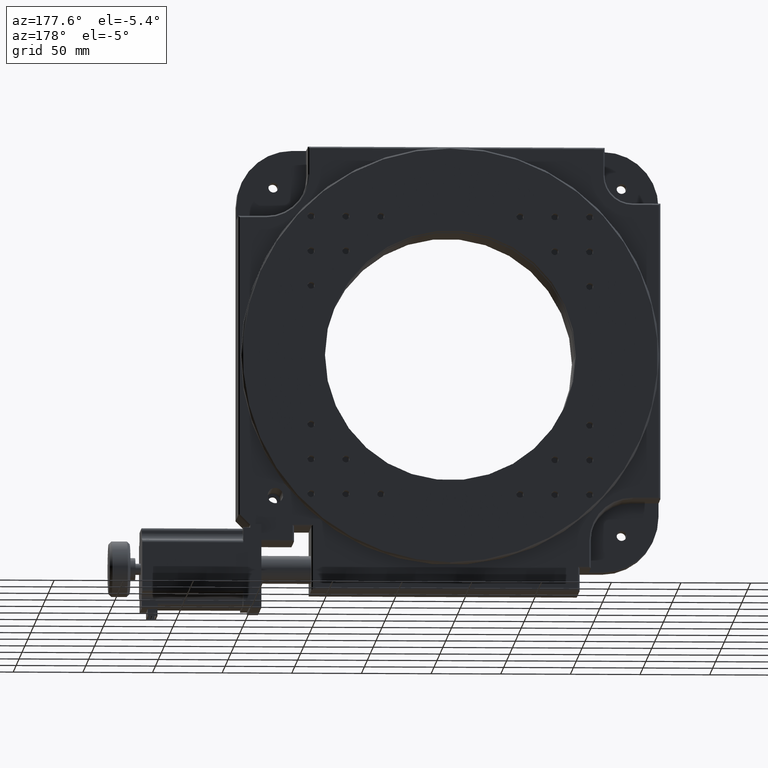
[diagram: clean part render]
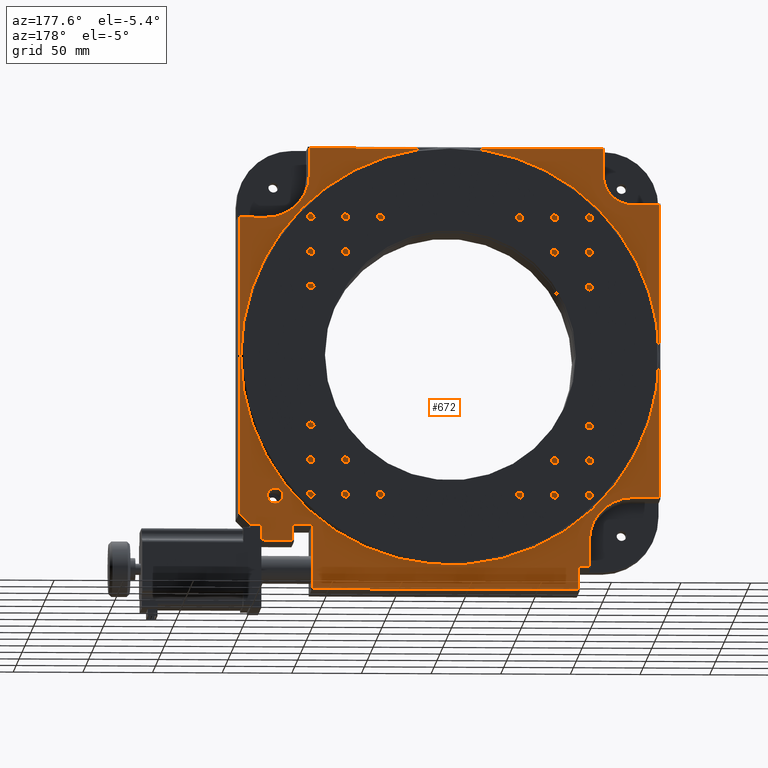
[diagram: same view with one face highlighted and labeled with its STEP entity id]
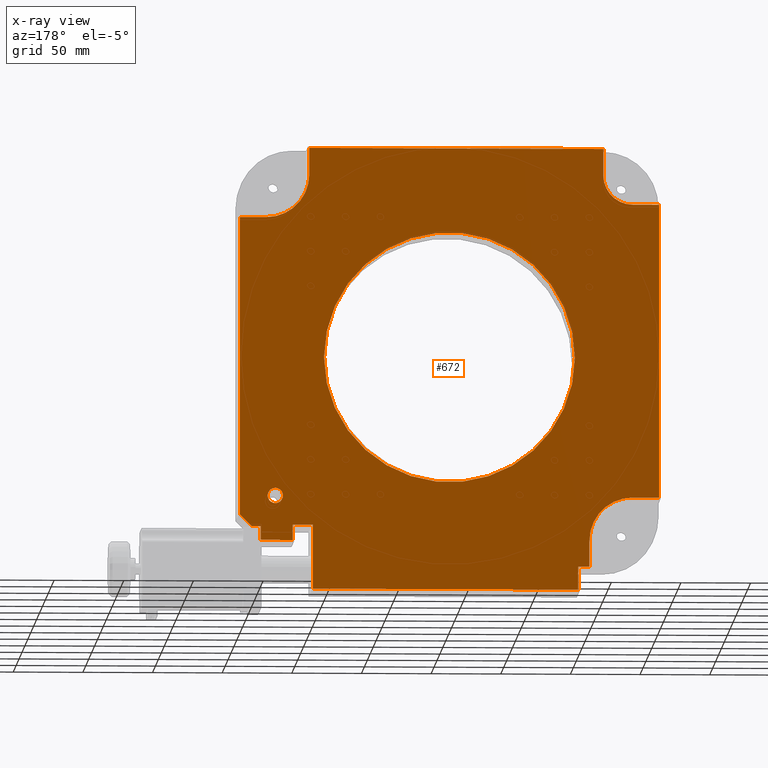
[diagram: x-ray of the same camera — body ghosted, the highlighted face saturated]
A machine part, auxiliary view. The second image highlights one B-rep face of the part: STEP entity #672.
The next image is the same camera in x-ray: the body ghosted, the highlighted face saturated — about 0% of this face is hidden behind the body in this view.
In plain terms, the highlighted planar face has unit normal (-0, -1, -0).
Its self-contained STEP definition (entity closure, byte-faithful):
#115 = CARTESIAN_POINT ( 'NONE',  ( 286.9999999999999400, 49.50000000000000000, -283.4999999999998900 ) ) ;
#192 = VECTOR ( 'NONE', #2519, 1000.000000000000000 ) ;
#240 = PLANE ( 'NONE',  #822 ) ;
#296 = EDGE_CURVE ( 'NONE', #4224, #9909, #10841, .T. ) ;
#342 = ORIENTED_EDGE ( 'NONE', *, *, #8300, .T. ) ;
#347 = LINE ( 'NONE', #7928, #1108 ) ;
#588 = DIRECTION ( 'NONE',  ( 1.502143935577760500E-016, 1.000000000000000000, -1.652117596168385000E-016 ) ) ;
#594 = VECTOR ( 'NONE', #5363, 1000.000000000000000 ) ;
#619 = VECTOR ( 'NONE', #3320, 1000.000000000000000 ) ;
#648 = ORIENTED_EDGE ( 'NONE', *, *, #3565, .T. ) ;
#672 = ADVANCED_FACE ( 'NONE', ( #6368, #5094, #3443 ), #240, .F. ) ;
#701 = EDGE_CURVE ( 'NONE', #14402, #14283, #2305, .T. ) ;
#718 = CARTESIAN_POINT ( 'NONE',  ( 252.0000000000001100, 49.49999999999995700, -284.5000000000001100 ) ) ;
#767 = EDGE_CURVE ( 'NONE', #3155, #7894, #1894, .T. ) ;
#797 = DIRECTION ( 'NONE',  ( 9.714451465470118500E-017, -3.231026779835487100E-032, -1.000000000000000000 ) ) ;
#812 = VECTOR ( 'NONE', #14851, 1000.000000000000000 ) ;
#822 = AXIS2_PLACEMENT_3D ( 'NONE', #14505, #8469, #5100 ) ;
#929 = CARTESIAN_POINT ( 'NONE',  ( 276.4999999999999400, 49.49999999999995700, -251.4999999999997700 ) ) ;
#1098 = VERTEX_POINT ( 'NONE', #7191 ) ;
#1108 = VECTOR ( 'NONE', #9176, 1000.000000000000000 ) ;
#1146 = CARTESIAN_POINT ( 'NONE',  ( 286.9999999999999400, 49.49999999999995000, -284.5000000000001100 ) ) ;
#1153 = CARTESIAN_POINT ( 'NONE',  ( 264.0000000000000000, 49.49999999999995700, -284.5000000000001100 ) ) ;
#1250 = VECTOR ( 'NONE', #14821, 1000.000000000000000 ) ;
#1335 = CARTESIAN_POINT ( 'NONE',  ( 286.9999999999999400, 49.50000000000010700, -272.4999999999998900 ) ) ;
#1354 = ORIENTED_EDGE ( 'NONE', *, *, #13949, .F. ) ;
#1393 = AXIS2_PLACEMENT_3D ( 'NONE', #9078, #10362, #7979 ) ;
#1412 = CARTESIAN_POINT ( 'NONE',  ( 20.00000000000015600, 49.50000000000000000, -282.9999999999998900 ) ) ;
#1457 = CARTESIAN_POINT ( 'NONE',  ( 301.9999999999999400, 49.49999999999996400, -51.00000000000007100 ) ) ;
#1526 = DIRECTION ( 'NONE',  ( 1.000000000000000000, -1.960156734515526900E-016, 5.134323476092320100E-017 ) ) ;
#1622 = ORIENTED_EDGE ( 'NONE', *, *, #4665, .T. ) ;
#1725 = CARTESIAN_POINT ( 'NONE',  ( 51.00000000000014200, 49.49999999999999300, -282.9999999999999400 ) ) ;
#1762 = ORIENTED_EDGE ( 'NONE', *, *, #6513, .F. ) ;
#1844 = EDGE_CURVE ( 'NONE', #14402, #1098, #3657, .T. ) ;
#1894 = LINE ( 'NONE', #6428, #594 ) ;
#2021 = CARTESIAN_POINT ( 'NONE',  ( 151.5000000000000000, 49.49999999999997900, -151.5000000000000900 ) ) ;
#2253 = EDGE_CURVE ( 'NONE', #3223, #7653, #7525, .T. ) ;
#2305 = LINE ( 'NONE', #13257, #10996 ) ;
#2374 = CARTESIAN_POINT ( 'NONE',  ( 286.9999999999999400, 49.49999999999995000, -273.5000000000000000 ) ) ;
#2422 = CIRCLE ( 'NONE', #1393, 30.99999999999990400 ) ;
#2519 = DIRECTION ( 'NONE',  ( -0.7071067811865469100, -1.060032538143056300E-015, -0.7071067811865482400 ) ) ;
#2521 = AXIS2_PLACEMENT_3D ( 'NONE', #1412, #13344, #10913 ) ;
#2549 = ORIENTED_EDGE ( 'NONE', *, *, #701, .T. ) ;
#2575 = DIRECTION ( 'NONE',  ( 9.714451465470121000E-017, 3.761453724692206000E-032, -1.000000000000000000 ) ) ;
#2590 = CIRCLE ( 'NONE', #2521, 30.99999999999994300 ) ;
#2625 = CARTESIAN_POINT ( 'NONE',  ( 264.0000000000000000, 49.50000000000002800, -272.4999999999998300 ) ) ;
#2729 = CARTESIAN_POINT ( 'NONE',  ( 282.0000000000000000, 49.49999999999995700, -251.4999999999997700 ) ) ;
#2733 = VERTEX_POINT ( 'NONE', #2625 ) ;
#2798 = LINE ( 'NONE', #5060, #5017 ) ;
#2915 = DIRECTION ( 'NONE',  ( 1.502143935577754100E-016, 1.000000000000000000, -3.534798453467996800E-032 ) ) ;
#3054 = DIRECTION ( 'NONE',  ( -9.714451465470122200E-017, 2.359450380624962200E-032, 1.000000000000000000 ) ) ;
#3138 = CARTESIAN_POINT ( 'NONE',  ( 249.4999999999999400, 49.50000000000006400, -272.4999999999998900 ) ) ;
#3144 = DIRECTION ( 'NONE',  ( 1.000000000000000000, -1.541976423090496100E-016, 0.0000000000000000000 ) ) ;
#3155 = VERTEX_POINT ( 'NONE', #8079 ) ;
#3223 = VERTEX_POINT ( 'NONE', #8279 ) ;
#3261 = CARTESIAN_POINT ( 'NONE',  ( 1.000000000000222900, 49.49999999999997900, -41.00000000000020600 ) ) ;
#3320 = DIRECTION ( 'NONE',  ( -1.000000000000000000, 1.502143935577754100E-016, -9.714451465470121000E-017 ) ) ;
#3443 = FACE_BOUND ( 'NONE', #8970, .T. ) ;
#3520 = CARTESIAN_POINT ( 'NONE',  ( 51.00000000000014200, 49.50000000000003600, -301.9999999999998300 ) ) ;
#3565 = EDGE_CURVE ( 'NONE', #13523, #11272, #4867, .T. ) ;
#3626 = VECTOR ( 'NONE', #13178, 1000.000000000000000 ) ;
#3657 = LINE ( 'NONE', #5402, #1250 ) ;
#3777 = LINE ( 'NONE', #15098, #619 ) ;
#3789 = EDGE_CURVE ( 'NONE', #6809, #14004, #11319, .T. ) ;
#3851 = DIRECTION ( 'NONE',  ( 1.000000000000000000, -1.502143935577754100E-016, 9.714451465470121000E-017 ) ) ;
#3873 = VERTEX_POINT ( 'NONE', #3520 ) ;
#4086 = ORIENTED_EDGE ( 'NONE', *, *, #15312, .T. ) ;
#4224 = VERTEX_POINT ( 'NONE', #5367 ) ;
#4293 = ORIENTED_EDGE ( 'NONE', *, *, #15153, .T. ) ;
#4335 = CARTESIAN_POINT ( 'NONE',  ( 61.50000000000004300, 49.49999999999999300, -151.5000000000001100 ) ) ;
#4358 = LINE ( 'NONE', #718, #812 ) ;
#4404 = CARTESIAN_POINT ( 'NONE',  ( 286.9999999999998300, 49.50000000000002800, -318.4999999999998900 ) ) ;
#4569 = ORIENTED_EDGE ( 'NONE', *, *, #14275, .F. ) ;
#4665 = EDGE_CURVE ( 'NONE', #11681, #6869, #13130, .T. ) ;
#4720 = DIRECTION ( 'NONE',  ( 9.714451465470121000E-017, 3.761453724692206000E-032, -1.000000000000000000 ) ) ;
#4867 = LINE ( 'NONE', #5296, #14100 ) ;
#5017 = VECTOR ( 'NONE', #2575, 1000.000000000000000 ) ;
#5060 = CARTESIAN_POINT ( 'NONE',  ( 51.00000000000012800, 49.49999999999998600, -284.5000000000001100 ) ) ;
#5069 = VERTEX_POINT ( 'NONE', #115 ) ;
#5094 = FACE_BOUND ( 'NONE', #13992, .T. ) ;
#5100 = DIRECTION ( 'NONE',  ( -1.000000000000000000, 1.502143935577754100E-016, -9.714451465470121000E-017 ) ) ;
#5164 = VECTOR ( 'NONE', #14345, 1000.000000000000000 ) ;
#5177 = LINE ( 'NONE', #4404, #5911 ) ;
#5275 = VERTEX_POINT ( 'NONE', #1725 ) ;
#5296 = CARTESIAN_POINT ( 'NONE',  ( 249.4999999999999700, 49.49999999999996400, -284.4999999999998300 ) ) ;
#5363 = DIRECTION ( 'NONE',  ( -5.370855907468837800E-017, -4.343595558001386700E-017, 1.000000000000000000 ) ) ;
#5367 = CARTESIAN_POINT ( 'NONE',  ( 41.00000000000017800, 49.49999999999999300, -20.00000000000007500 ) ) ;
#5402 = CARTESIAN_POINT ( 'NONE',  ( 286.9999999999999400, 49.49999999999995000, -51.00000000000005700 ) ) ;
#5451 = CARTESIAN_POINT ( 'NONE',  ( 151.5000000000000000, 49.49999999999997900, -151.5000000000000900 ) ) ;
#5462 = VECTOR ( 'NONE', #3054, 1000.000000000000000 ) ;
#5555 = VERTEX_POINT ( 'NONE', #13033 ) ;
#5586 = EDGE_CURVE ( 'NONE', #5069, #13622, #15284, .T. ) ;
#5661 = VERTEX_POINT ( 'NONE', #6080 ) ;
#5816 = LINE ( 'NONE', #10081, #5462 ) ;
#5821 = EDGE_CURVE ( 'NONE', #11036, #5555, #5816, .T. ) ;
#5911 = VECTOR ( 'NONE', #10200, 1000.000000000000000 ) ;
#6080 = CARTESIAN_POINT ( 'NONE',  ( 264.0000000000000000, 49.49999999999995700, -283.4999999999998300 ) ) ;
#6193 = ORIENTED_EDGE ( 'NONE', *, *, #14130, .F. ) ;
#6240 = CARTESIAN_POINT ( 'NONE',  ( 286.9999999999999400, 49.49999999999995000, -252.0000000000000000 ) ) ;
#6250 = AXIS2_PLACEMENT_3D ( 'NONE', #929, #12780, #11637 ) ;
#6368 = FACE_OUTER_BOUND ( 'NONE', #15012, .T. ) ;
#6428 = CARTESIAN_POINT ( 'NONE',  ( 1.000000000000195200, 49.49999999999999300, -284.5000000000000000 ) ) ;
#6513 = EDGE_CURVE ( 'NONE', #10751, #5275, #2590, .T. ) ;
#6530 = CARTESIAN_POINT ( 'NONE',  ( 58.99999999999995700, 49.50000000000001400, -318.5000000000000000 ) ) ;
#6635 = LINE ( 'NONE', #1335, #5164 ) ;
#6809 = VERTEX_POINT ( 'NONE', #4335 ) ;
#6869 = VERTEX_POINT ( 'NONE', #13966 ) ;
#7000 = EDGE_CURVE ( 'NONE', #2733, #5661, #10851, .T. ) ;
#7161 = CARTESIAN_POINT ( 'NONE',  ( 293.5857864376267200, 49.49999999999992200, -273.5000000000000000 ) ) ;
#7191 = CARTESIAN_POINT ( 'NONE',  ( 283.0000000000000600, 49.49999999999995000, -51.00000000000005700 ) ) ;
#7467 = VERTEX_POINT ( 'NONE', #7161 ) ;
#7486 = CARTESIAN_POINT ( 'NONE',  ( 286.9999999999998300, 49.50000000000003600, -301.9999999999998300 ) ) ;
#7507 = ORIENTED_EDGE ( 'NONE', *, *, #767, .T. ) ;
#7525 = CIRCLE ( 'NONE', #10238, 5.500000000000005300 ) ;
#7538 = CARTESIAN_POINT ( 'NONE',  ( 20.00000000000015600, 49.50000000000000000, -20.00000000000015600 ) ) ;
#7639 = DIRECTION ( 'NONE',  ( 1.652117596168385300E-016, 0.0000000000000000000, -1.000000000000000000 ) ) ;
#7653 = VERTEX_POINT ( 'NONE', #2729 ) ;
#7883 = CARTESIAN_POINT ( 'NONE',  ( 241.4999999999999400, 49.49999999999996400, -151.5000000000000900 ) ) ;
#7894 = VERTEX_POINT ( 'NONE', #3261 ) ;
#7928 = CARTESIAN_POINT ( 'NONE',  ( 286.9999999999999400, 49.49999999999995000, -283.4999999999998300 ) ) ;
#7979 = DIRECTION ( 'NONE',  ( 0.0000000000000000000, 0.0000000000000000000, -1.000000000000000000 ) ) ;
#8057 = VECTOR ( 'NONE', #14383, 1000.000000000000000 ) ;
#8079 = CARTESIAN_POINT ( 'NONE',  ( 1.000000000000222900, 49.50000000000002100, -252.0000000000000000 ) ) ;
#8083 = VECTOR ( 'NONE', #4720, 1000.000000000000000 ) ;
#8279 = CARTESIAN_POINT ( 'NONE',  ( 270.9999999999999400, 49.49999999999995700, -251.4999999999997700 ) ) ;
#8300 = EDGE_CURVE ( 'NONE', #14004, #6809, #8904, .T. ) ;
#8448 = LINE ( 'NONE', #7486, #9545 ) ;
#8469 = DIRECTION ( 'NONE',  ( -1.502143935577754100E-016, -1.000000000000000000, -5.220704160324242800E-032 ) ) ;
#8499 = DIRECTION ( 'NONE',  ( 9.714451465470121000E-017, 3.761453724692206000E-032, -1.000000000000000000 ) ) ;
#8569 = DIRECTION ( 'NONE',  ( -3.316335208533951100E-017, -1.303078667400417600E-016, -1.000000000000000000 ) ) ;
#8579 = CARTESIAN_POINT ( 'NONE',  ( 301.9999999999998300, 49.49999999999986500, -265.0857864376268900 ) ) ;
#8883 = VECTOR ( 'NONE', #8499, 1000.000000000000000 ) ;
#8904 = CIRCLE ( 'NONE', #11242, 89.99999999999994300 ) ;
#8970 = EDGE_LOOP ( 'NONE', ( #342, #15250 ) ) ;
#8979 = ORIENTED_EDGE ( 'NONE', *, *, #15179, .F. ) ;
#9078 = CARTESIAN_POINT ( 'NONE',  ( 283.0000000000000600, 49.49999999999995000, -20.00000000000024200 ) ) ;
#9176 = DIRECTION ( 'NONE',  ( 1.000000000000000000, -1.502143935577754100E-016, 9.714451465470121000E-017 ) ) ;
#9545 = VECTOR ( 'NONE', #12297, 1000.000000000000000 ) ;
#9671 = CARTESIAN_POINT ( 'NONE',  ( 286.9999999999999400, 49.49999999999995000, -273.5000000000000600 ) ) ;
#9731 = CARTESIAN_POINT ( 'NONE',  ( 301.9999999999999400, 49.49999999999994300, -265.0857864376269500 ) ) ;
#9909 = VERTEX_POINT ( 'NONE', #14908 ) ;
#9945 = CARTESIAN_POINT ( 'NONE',  ( 276.4999999999999400, 49.49999999999995700, -251.4999999999997700 ) ) ;
#10081 = CARTESIAN_POINT ( 'NONE',  ( 59.00000000000013500, 49.49999999999997900, -284.4999999999998300 ) ) ;
#10200 = DIRECTION ( 'NONE',  ( -1.000000000000000000, 1.044131136639986200E-016, -5.134323476092380500E-017 ) ) ;
#10238 = AXIS2_PLACEMENT_3D ( 'NONE', #9945, #2915, #11176 ) ;
#10263 = DIRECTION ( 'NONE',  ( -1.502143935577754100E-016, -1.000000000000000000, 3.534798453467996800E-032 ) ) ;
#10355 = LINE ( 'NONE', #8579, #192 ) ;
#10362 = DIRECTION ( 'NONE',  ( 1.502143935577759200E-016, 1.000000000000000000, -1.119176436114072000E-016 ) ) ;
#10526 = CIRCLE ( 'NONE', #6250, 5.500000000000005300 ) ;
#10560 = EDGE_CURVE ( 'NONE', #1098, #13109, #2422, .T. ) ;
#10637 = CARTESIAN_POINT ( 'NONE',  ( 249.4999999999999400, 49.49999999999998600, -318.4999999999998900 ) ) ;
#10751 = VERTEX_POINT ( 'NONE', #12086 ) ;
#10841 = CIRCLE ( 'NONE', #12957, 21.00000000000003200 ) ;
#10851 = LINE ( 'NONE', #1153, #8083 ) ;
#10858 = CARTESIAN_POINT ( 'NONE',  ( 286.9999999999998300, 49.49999999999990800, -1.000000000000111900 ) ) ;
#10904 = EDGE_CURVE ( 'NONE', #5555, #3873, #8448, .T. ) ;
#10913 = DIRECTION ( 'NONE',  ( 1.000000000000000000, 0.0000000000000000000, 0.0000000000000000000 ) ) ;
#10996 = VECTOR ( 'NONE', #8569, 1000.000000000000000 ) ;
#11036 = VERTEX_POINT ( 'NONE', #6530 ) ;
#11176 = DIRECTION ( 'NONE',  ( 1.000000000000000000, 0.0000000000000000000, 0.0000000000000000000 ) ) ;
#11242 = AXIS2_PLACEMENT_3D ( 'NONE', #5451, #15074, #3144 ) ;
#11272 = VERTEX_POINT ( 'NONE', #10637 ) ;
#11319 = CIRCLE ( 'NONE', #14996, 89.99999999999994300 ) ;
#11391 = EDGE_CURVE ( 'NONE', #3155, #10751, #15117, .T. ) ;
#11410 = ORIENTED_EDGE ( 'NONE', *, *, #10904, .T. ) ;
#11426 = LINE ( 'NONE', #9671, #8057 ) ;
#11495 = DIRECTION ( 'NONE',  ( 1.000000000000000000, -1.541976423090496100E-016, 0.0000000000000000000 ) ) ;
#11536 = ORIENTED_EDGE ( 'NONE', *, *, #14900, .T. ) ;
#11637 = DIRECTION ( 'NONE',  ( 1.000000000000000000, 0.0000000000000000000, 0.0000000000000000000 ) ) ;
#11654 = ORIENTED_EDGE ( 'NONE', *, *, #11391, .F. ) ;
#11681 = VERTEX_POINT ( 'NONE', #14854 ) ;
#11824 = ORIENTED_EDGE ( 'NONE', *, *, #5586, .F. ) ;
#11995 = ORIENTED_EDGE ( 'NONE', *, *, #1844, .F. ) ;
#12085 = LINE ( 'NONE', #12231, #8883 ) ;
#12086 = CARTESIAN_POINT ( 'NONE',  ( 19.99999999999998900, 49.50000000000000000, -252.0000000000000600 ) ) ;
#12231 = CARTESIAN_POINT ( 'NONE',  ( 41.00000000000020600, 49.49999999999998600, -284.5000000000001100 ) ) ;
#12297 = DIRECTION ( 'NONE',  ( -1.000000000000000000, 3.894865971407834300E-016, -3.364167182377085000E-016 ) ) ;
#12330 = EDGE_CURVE ( 'NONE', #7653, #3223, #10526, .T. ) ;
#12353 = VECTOR ( 'NONE', #3851, 1000.000000000000000 ) ;
#12417 = ORIENTED_EDGE ( 'NONE', *, *, #14848, .F. ) ;
#12576 = ORIENTED_EDGE ( 'NONE', *, *, #2253, .F. ) ;
#12780 = DIRECTION ( 'NONE',  ( 1.502143935577754100E-016, 1.000000000000000000, -3.534798453467996800E-032 ) ) ;
#12957 = AXIS2_PLACEMENT_3D ( 'NONE', #7538, #588, #7639 ) ;
#13033 = CARTESIAN_POINT ( 'NONE',  ( 59.00000000000014900, 49.50000000000002800, -301.9999999999998300 ) ) ;
#13109 = VERTEX_POINT ( 'NONE', #14188 ) ;
#13130 = LINE ( 'NONE', #10858, #14801 ) ;
#13178 = DIRECTION ( 'NONE',  ( -9.714451465470121000E-017, -3.761453724692206000E-032, 1.000000000000000000 ) ) ;
#13257 = CARTESIAN_POINT ( 'NONE',  ( 301.9999999999999400, 49.49999999999997200, -284.4999999999998900 ) ) ;
#13292 = EDGE_CURVE ( 'NONE', #13622, #7467, #11426, .T. ) ;
#13344 = DIRECTION ( 'NONE',  ( 3.829674994636881800E-017, 1.000000000000000000, -2.442656635646703500E-033 ) ) ;
#13427 = ORIENTED_EDGE ( 'NONE', *, *, #12330, .F. ) ;
#13523 = VERTEX_POINT ( 'NONE', #3138 ) ;
#13622 = VERTEX_POINT ( 'NONE', #2374 ) ;
#13949 = EDGE_CURVE ( 'NONE', #13109, #6869, #4358, .T. ) ;
#13966 = CARTESIAN_POINT ( 'NONE',  ( 252.0000000000001100, 49.49999999999992900, -1.000000000000084200 ) ) ;
#13992 = EDGE_LOOP ( 'NONE', ( #13427, #12576 ) ) ;
#14004 = VERTEX_POINT ( 'NONE', #7883 ) ;
#14100 = VECTOR ( 'NONE', #797, 1000.000000000000000 ) ;
#14130 = EDGE_CURVE ( 'NONE', #9909, #7894, #3777, .T. ) ;
#14188 = CARTESIAN_POINT ( 'NONE',  ( 252.0000000000001100, 49.49999999999995700, -20.00000000000009900 ) ) ;
#14217 = ORIENTED_EDGE ( 'NONE', *, *, #10560, .F. ) ;
#14275 = EDGE_CURVE ( 'NONE', #11681, #4224, #12085, .T. ) ;
#14283 = VERTEX_POINT ( 'NONE', #9731 ) ;
#14345 = DIRECTION ( 'NONE',  ( -1.000000000000000000, 1.502143935577756800E-016, -9.714451465470097500E-017 ) ) ;
#14383 = DIRECTION ( 'NONE',  ( 1.000000000000000000, -1.502143935577754100E-016, 9.714451465470121000E-017 ) ) ;
#14402 = VERTEX_POINT ( 'NONE', #1457 ) ;
#14459 = ORIENTED_EDGE ( 'NONE', *, *, #7000, .F. ) ;
#14460 = ORIENTED_EDGE ( 'NONE', *, *, #5821, .T. ) ;
#14505 = CARTESIAN_POINT ( 'NONE',  ( 286.9999999999999400, 49.49999999999995000, -284.5000000000001100 ) ) ;
#14760 = ORIENTED_EDGE ( 'NONE', *, *, #13292, .F. ) ;
#14801 = VECTOR ( 'NONE', #1526, 1000.000000000000000 ) ;
#14821 = DIRECTION ( 'NONE',  ( -1.000000000000000000, 1.502143935577754100E-016, -9.714451465470121000E-017 ) ) ;
#14848 = EDGE_CURVE ( 'NONE', #5275, #3873, #2798, .T. ) ;
#14851 = DIRECTION ( 'NONE',  ( -9.714451465470121000E-017, -3.761453724692206000E-032, 1.000000000000000000 ) ) ;
#14854 = CARTESIAN_POINT ( 'NONE',  ( 41.00000000000013500, 49.49999999999995000, -1.000000000000028600 ) ) ;
#14900 = EDGE_CURVE ( 'NONE', #14283, #7467, #10355, .T. ) ;
#14908 = CARTESIAN_POINT ( 'NONE',  ( 20.00000000000004600, 49.49999999999999300, -41.00000000000022000 ) ) ;
#14996 = AXIS2_PLACEMENT_3D ( 'NONE', #2021, #10263, #11495 ) ;
#15012 = EDGE_LOOP ( 'NONE', ( #14459, #4086, #648, #4293, #14460, #11410, #12417, #1762, #11654, #7507, #6193, #15131, #4569, #1622, #1354, #14217, #11995, #2549, #11536, #14760, #11824, #8979 ) ) ;
#15074 = DIRECTION ( 'NONE',  ( -1.502143935577754100E-016, -1.000000000000000000, 3.534798453467996800E-032 ) ) ;
#15098 = CARTESIAN_POINT ( 'NONE',  ( 286.9999999999999400, 49.49999999999995000, -41.00000000000019200 ) ) ;
#15117 = LINE ( 'NONE', #6240, #12353 ) ;
#15131 = ORIENTED_EDGE ( 'NONE', *, *, #296, .F. ) ;
#15153 = EDGE_CURVE ( 'NONE', #11272, #11036, #5177, .T. ) ;
#15179 = EDGE_CURVE ( 'NONE', #5661, #5069, #347, .T. ) ;
#15250 = ORIENTED_EDGE ( 'NONE', *, *, #3789, .T. ) ;
#15284 = LINE ( 'NONE', #1146, #3626 ) ;
#15312 = EDGE_CURVE ( 'NONE', #2733, #13523, #6635, .T. ) ;